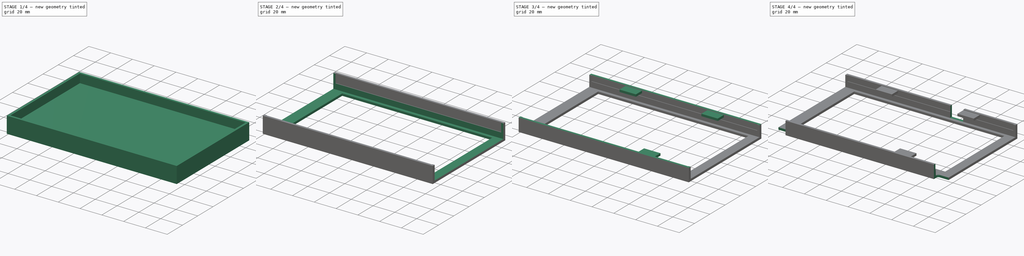
[diagram: build sequence overview — one tinted view per stage of 4, left to right]
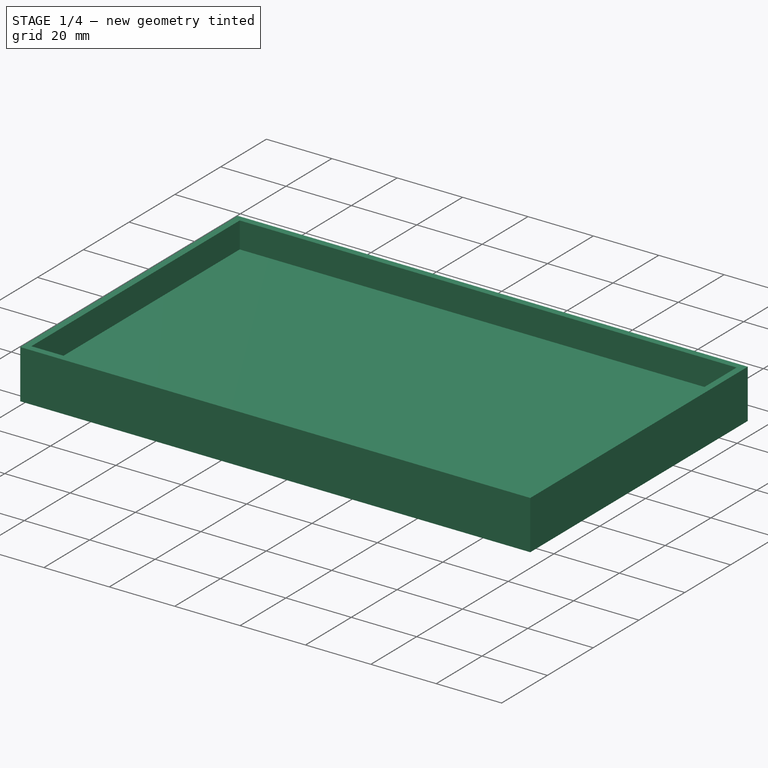
[diagram: stage 1 of 4 — iso view after this stage's code; geometry added in this stage tinted green]
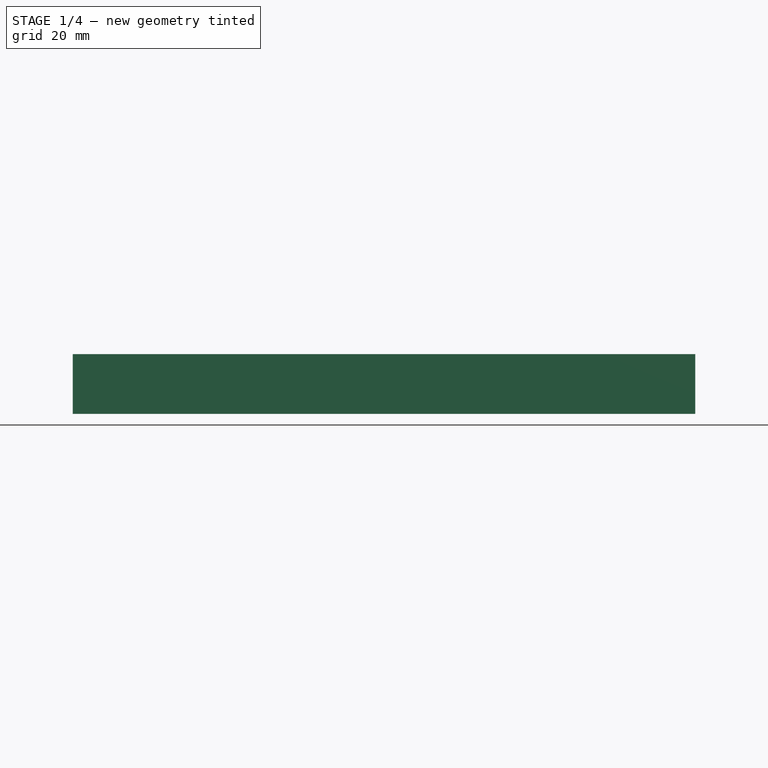
[diagram: stage 1 of 4 — front view after this stage's code; geometry added in this stage tinted green]
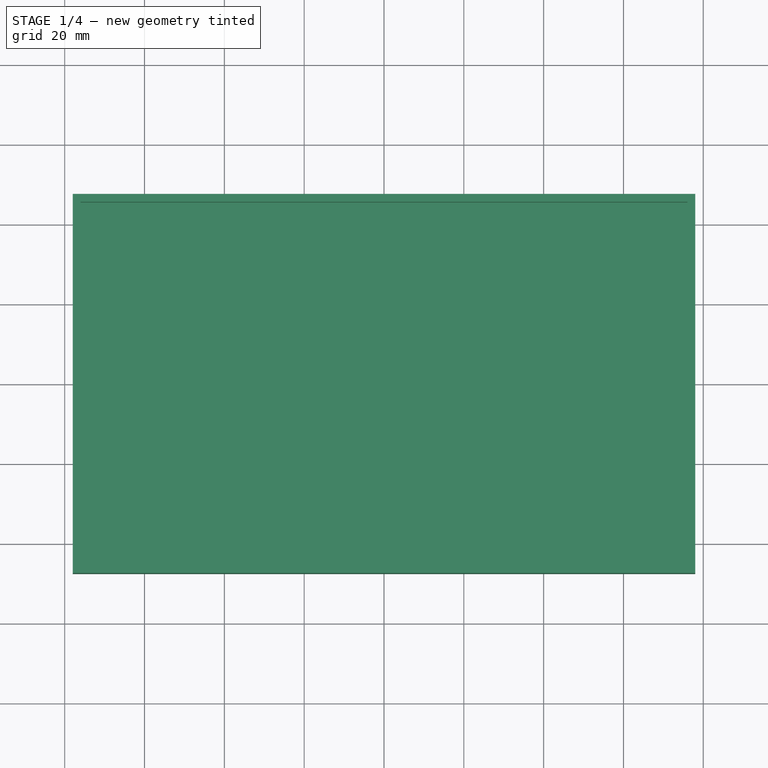
[diagram: stage 1 of 4 — top view after this stage's code; geometry added in this stage tinted green]
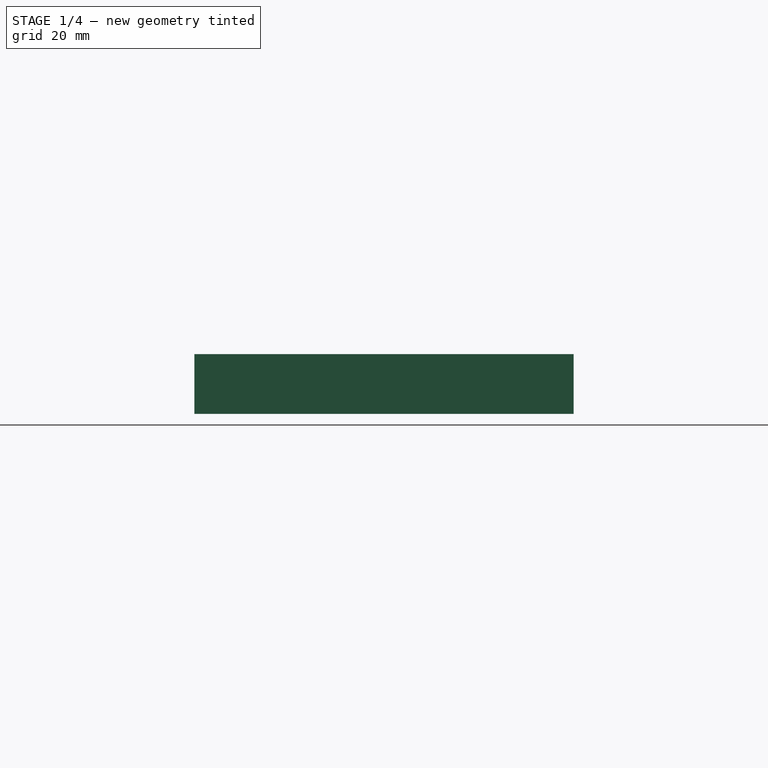
[diagram: stage 1 of 4 — right view after this stage's code; geometry added in this stage tinted green]
FCSTD DOCUMENT  (FreeCAD 0.21R33675 (Git))
Label: 8th Gen AIBT Front
License: All rights reserved
LicenseURL: https://en.wikipedia.org/wiki/All_rights_reserved
objects: Sketcher::SketchObject×9, PartDesign::Pocket×6, PartDesign::Pad×3, PartDesign::Body×1
note: 28 computed .brp shape members not serialized (recipe doc carries the construction recipe); baked Part::Feature solids carry a one-line shape summary decoded from their .brp

FEATURE [Sketcher::SketchObject] Sketch  label="Base Sketch"
  FullyConstrained = true
  MapMode = 5
  Support = -> [XY_Plane]
  sketch-geometry (4):
    g0: LineSegment StartX=-78 StartY=47.5 StartZ=0 EndX=78 EndY=47.5 EndZ=0
    g1: LineSegment StartX=78 StartY=47.5 StartZ=0 EndX=78 EndY=-47.5 EndZ=0
    g2: LineSegment StartX=78 StartY=-47.5 StartZ=0 EndX=-78 EndY=-47.5 EndZ=0
    g3: LineSegment StartX=-78 StartY=-47.5 StartZ=0 EndX=-78 EndY=47.5 EndZ=0
  constraints (10):
    c: Coincident(g0,g1)
    c: Coincident(g1,g2)
    c: Coincident(g2,g3)
    c: Coincident(g3,g0)
    c: Horizontal(g2)
    c: Vertical(g1)
    c: DistanceX(g0,g0) = 156
    c: DistanceY(g3,g3) = 95
    c: Symmetric(g0,g2,g-1)
    c: Symmetric(g0,g0,g-2)
FEATURE [PartDesign::Pad] Pad  label="Base"
  Direction = (0,0,1)
  Length = 15
  Length2 = 10
  Profile = -> Sketch
  ReferenceAxis = -> Sketch [N_Axis]
  Type = 0
FEATURE [Sketcher::SketchObject] Sketch001  label="Shell Sketch"
  ExternalGeometry = -> [Pad]
  FullyConstrained = true
  MapMode = 5
  Placement = pos=(0,0,15) rot=(0,0,1;0rad)
  Support = -> [Pad]
  sketch-geometry (6):
    g0: LineSegment StartX=-76 StartY=45.5 StartZ=0 EndX=76 EndY=45.5 EndZ=0
    g1: LineSegment StartX=76 StartY=45.5 StartZ=0 EndX=76 EndY=-45.5 EndZ=0
    g2: LineSegment StartX=76 StartY=-45.5 StartZ=0 EndX=-76 EndY=-45.5 EndZ=0
    g3: LineSegment StartX=-76 StartY=-45.5 StartZ=0 EndX=-76 EndY=45.5 EndZ=0
    g4: LineSegment StartX=-76 StartY=45.5 StartZ=0 EndX=-76 EndY=47.5 EndZ=0
    g5: LineSegment StartX=-76 StartY=45.5 StartZ=0 EndX=-78 EndY=45.5 EndZ=0
  constraints (16):
    c: Coincident(g0,g1)
    c: Coincident(g1,g2)
    c: Coincident(g2,g3)
    c: Coincident(g3,g0)
    c: Horizontal(g2)
    c: Vertical(g1)
    c: Symmetric(g0,g2,g-1)
    c: Symmetric(g0,g0,g-2)
    c: Coincident(g4,g0)
    c: PointOnObject(g4,g-4)
    c: Vertical(g4)
    c: Coincident(g5,g0)
    c: PointOnObject(g5,g-3)
    c: Horizontal(g5)
    c: Equal(g5,g4)
    c: DistanceX(g5,g5) = 2
FEATURE [PartDesign::Pocket] Pocket  label="Shell"
  BaseFeature = -> Pad
  Direction = (0,0,-1)
  Length = 8
  Length2 = 5
  Profile = -> Sketch001
  ReferenceAxis = -> Sketch001 [N_Axis]
  Type = 0
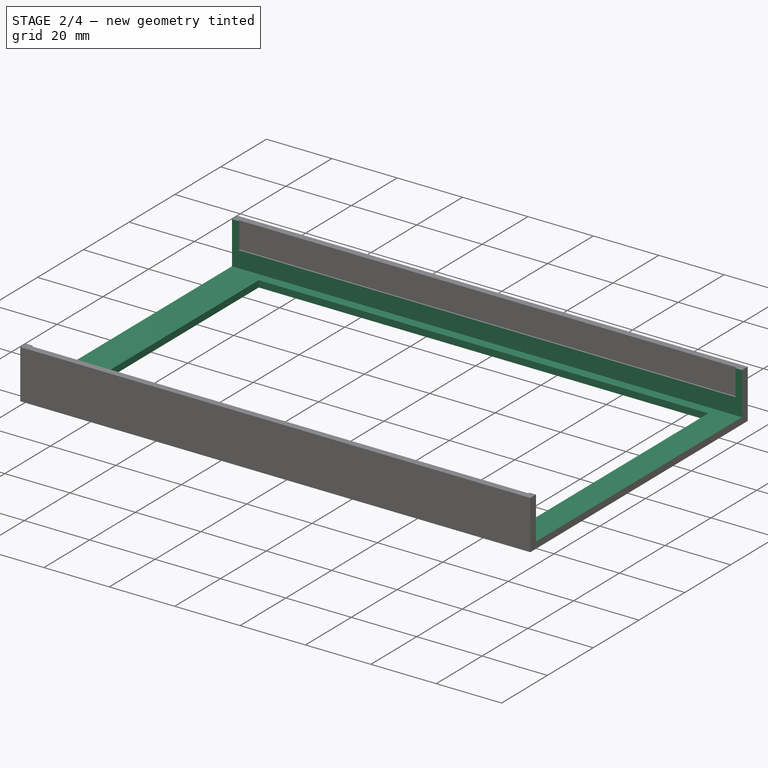
[diagram: stage 2 of 4 — iso view after this stage's code; geometry added in this stage tinted green]
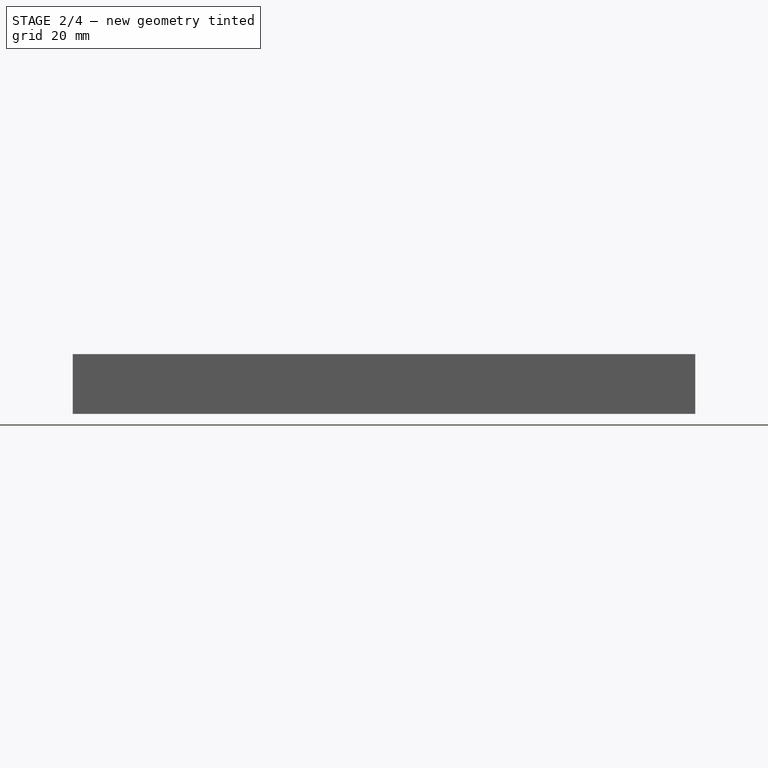
[diagram: stage 2 of 4 — front view after this stage's code; geometry added in this stage tinted green]
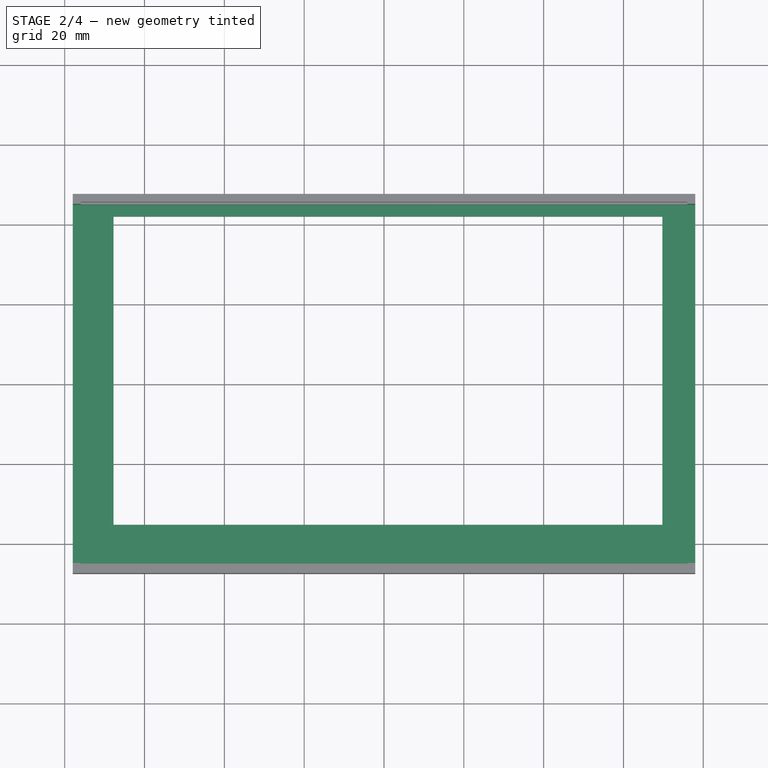
[diagram: stage 2 of 4 — top view after this stage's code; geometry added in this stage tinted green]
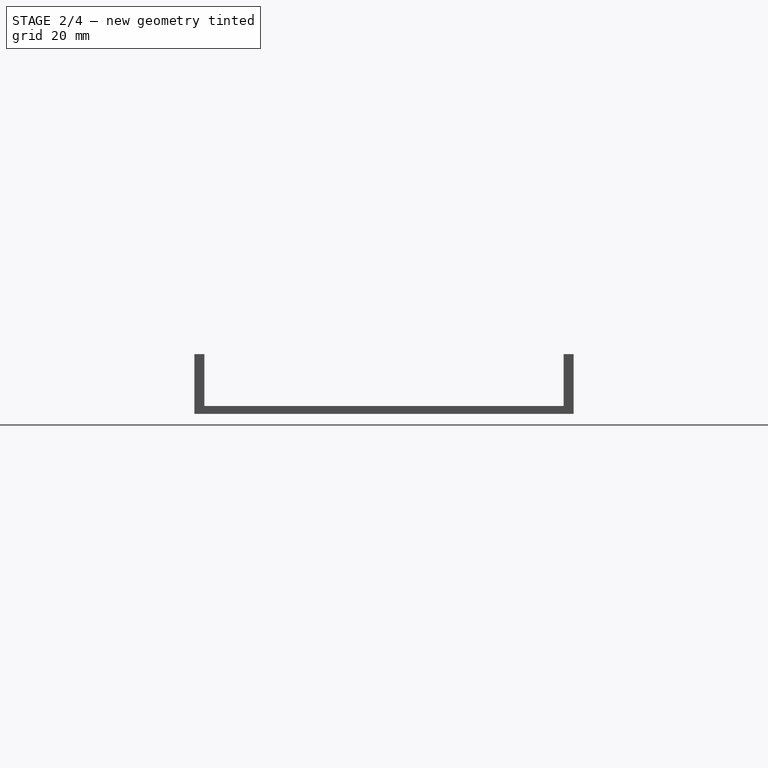
[diagram: stage 2 of 4 — right view after this stage's code; geometry added in this stage tinted green]
FEATURE [Sketcher::SketchObject] Sketch002  label="Screen Shell Sketch"
  ExternalGeometry = -> [Pocket]
  FullyConstrained = true
  MapMode = 5
  Placement = pos=(0,0,7) rot=(0,0,1;0rad)
  Support = -> [Pocket]
  sketch-geometry (4):
    g0: LineSegment StartX=-78 StartY=45 StartZ=0 EndX=78 EndY=45 EndZ=0
    g1: LineSegment StartX=78 StartY=45 StartZ=0 EndX=78 EndY=-45 EndZ=0
    g2: LineSegment StartX=78 StartY=-45 StartZ=0 EndX=-78 EndY=-45 EndZ=0
    g3: LineSegment StartX=-78 StartY=-45 StartZ=0 EndX=-78 EndY=45 EndZ=0
  constraints (10):
    c: Coincident(g0,g1)
    c: Coincident(g1,g2)
    c: Coincident(g2,g3)
    c: Coincident(g3,g0)
    c: Horizontal(g2)
    c: DistanceY(g3,g3) = 90
    c: Symmetric(g0,g1,g-1)
    c: PointOnObject(g0,g-3)
    c: PointOnObject(g0,g-4)
    c: Symmetric(g0,g2,g-1)
FEATURE [PartDesign::Pocket] Pocket001  label="Screen Shell"
  BaseFeature = -> Pocket
  Direction = (0,0,-1)
  Length = 5
  Length2 = 9
  Profile = -> Sketch002
  ReferenceAxis = -> Sketch002 [N_Axis]
  Type = 4
FEATURE [Sketcher::SketchObject] Sketch003  label="Screen Cut Sketch"
  ExternalGeometry = -> [Pocket001]
  FullyConstrained = true
  MapMode = 5
  Placement = pos=(0,0,2) rot=(0,0,1;0rad)
  Support = -> [Pocket001]
  sketch-geometry (6):
    g0: LineSegment StartX=-67.76 StartY=42.056 StartZ=0 EndX=69.76 EndY=42.056 EndZ=0
    g1: LineSegment StartX=69.76 StartY=42.056 StartZ=0 EndX=69.76 EndY=-35.176 EndZ=0
    g2: LineSegment StartX=69.76 StartY=-35.176 StartZ=0 EndX=-67.76 EndY=-35.176 EndZ=0
    g3: LineSegment StartX=-67.76 StartY=-35.176 StartZ=0 EndX=-67.76 EndY=42.056 EndZ=0
    g4: LineSegment StartX=-77.6 StartY=-45 StartZ=0 EndX=-77.6 EndY=45 EndZ=0
    g5: LineSegment StartX=77.6 StartY=45 StartZ=0 EndX=77.6 EndY=-45 EndZ=0
  constraints (19):
    c: Coincident(g0,g1)
    c: Coincident(g1,g2)
    c: Coincident(g2,g3)
    c: Coincident(g3,g0)
    c: Horizontal(g2)
    c: Vertical(g1)
    c: Vertical(g3)
    c: DistanceX(g0,g0) = 137.52
    c: DistanceY(g3,g3) = 77.232
    c: Horizontal(g0)
    c: DistanceY(g0,g-3) = 2.944
    c: PointOnObject(g4,g-4)
    c: PointOnObject(g4,g-3)
    c: Vertical(g4)
    c: PointOnObject(g5,g-4)
    c: Vertical(g5)
    c: DistanceX(g4,g5) = 155.2
    c: Symmetric(g5,g4,g-2)
    c: DistanceX(g0,g5) = 7.84
FEATURE [PartDesign::Pocket] Pocket002  label="Screen Cut"
  BaseFeature = -> Pocket001
  Direction = (0,0,-1)
  Length = 5
  Length2 = 5
  Profile = -> Sketch003
  ReferenceAxis = -> Sketch003 [N_Axis]
  Type = 0
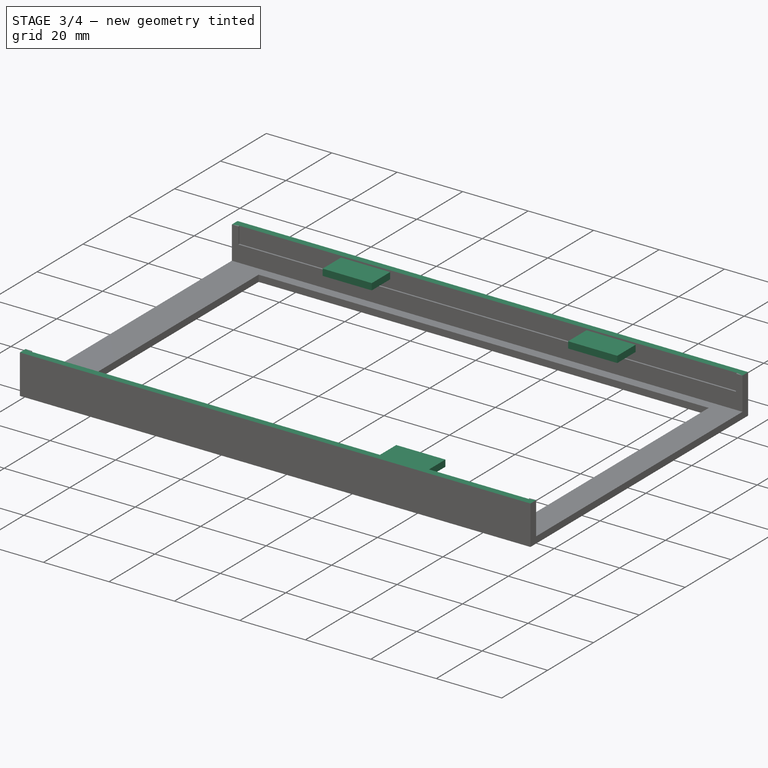
[diagram: stage 3 of 4 — iso view after this stage's code; geometry added in this stage tinted green]
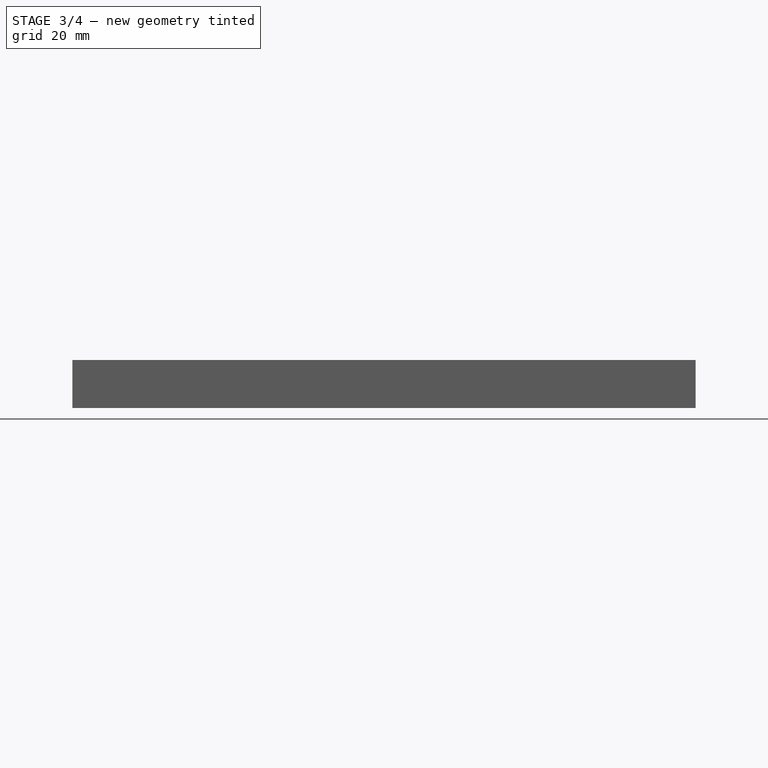
[diagram: stage 3 of 4 — front view after this stage's code; geometry added in this stage tinted green]
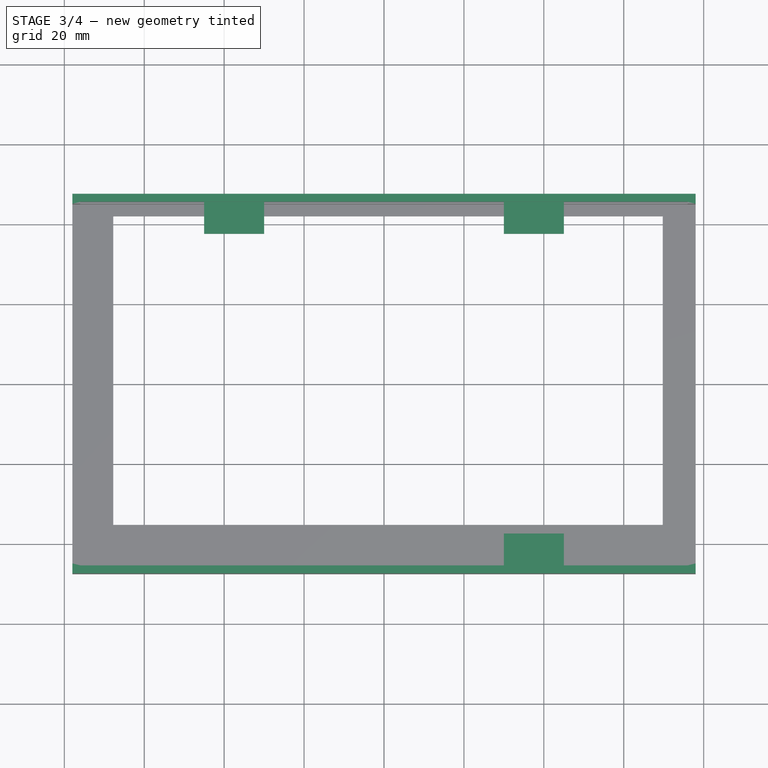
[diagram: stage 3 of 4 — top view after this stage's code; geometry added in this stage tinted green]
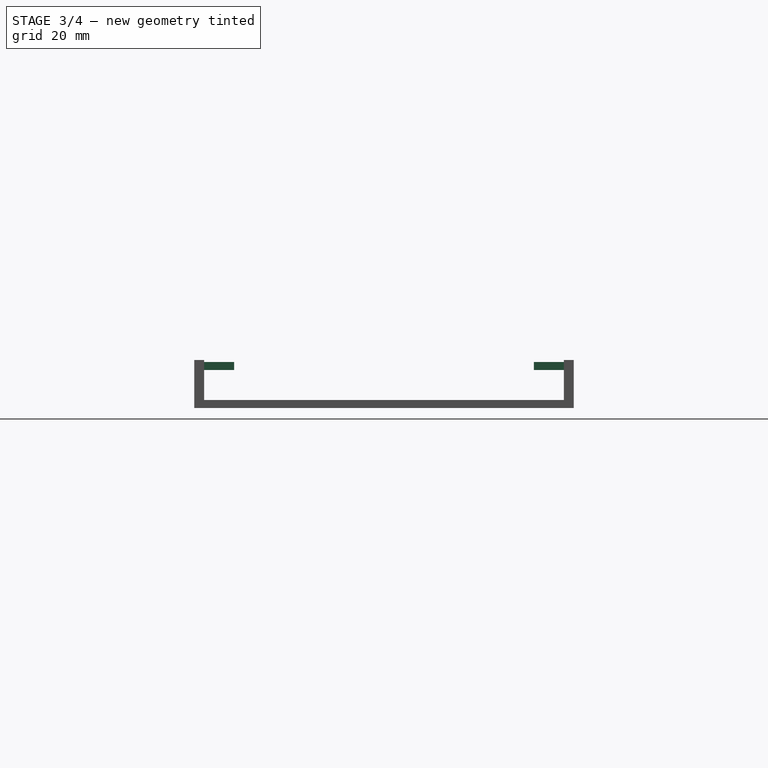
[diagram: stage 3 of 4 — right view after this stage's code; geometry added in this stage tinted green]
FEATURE [Sketcher::SketchObject] Sketch004  label="Upper Board Lock Sketch"
  ExternalGeometry = -> [Pocket002]
  FullyConstrained = true
  MapMode = 5
  Placement = pos=(0,45.5,0) rot=(1,0,0;1.5708rad)
  Support = -> [Pocket002]
  sketch-geometry (11):
    g0: LineSegment StartX=-45 StartY=11.5 StartZ=0 EndX=-30 EndY=11.5 EndZ=0
    g1: LineSegment StartX=-30 StartY=11.5 StartZ=0 EndX=-30 EndY=9.5 EndZ=0
    g2: LineSegment StartX=-30 StartY=9.5 StartZ=0 EndX=-45 EndY=9.5 EndZ=0
    g3: LineSegment StartX=-45 StartY=9.5 StartZ=0 EndX=-45 EndY=11.5 EndZ=0
    g4: LineSegment StartX=-45 StartY=9.5 StartZ=0 EndX=-45 EndY=7 EndZ=0
    g5: LineSegment StartX=30 StartY=11.5 StartZ=0 EndX=45 EndY=11.5 EndZ=0
    g6: LineSegment StartX=45 StartY=11.5 StartZ=0 EndX=45 EndY=9.5 EndZ=0
    g7: LineSegment StartX=45 StartY=9.5 StartZ=0 EndX=30 EndY=9.5 EndZ=0
    g8: LineSegment StartX=30 StartY=9.5 StartZ=0 EndX=30 EndY=11.5 EndZ=0
    g9: LineSegment StartX=30 StartY=9.5 StartZ=0 EndX=30 EndY=7 EndZ=0
    g10: LineSegment StartX=-30 StartY=9.5 StartZ=0 EndX=30 EndY=9.5 EndZ=0
  constraints (31):
    c: Coincident(g0,g1)
    c: Coincident(g1,g2)
    c: Coincident(g2,g3)
    c: Coincident(g3,g0)
    c: Horizontal(g0)
    c: Horizontal(g2)
    c: Vertical(g1)
    c: Vertical(g3)
    c: DistanceY(g3,g3) = 2
    c: DistanceX(g0,g0) = 15
    c: Coincident(g4,g2)
    c: PointOnObject(g4,g-3)
    c: Vertical(g4)
    c: DistanceY(g4,g4) = 2.5
    c: Coincident(g5,g6)
    c: Coincident(g6,g7)
    c: Coincident(g7,g8)
    c: Coincident(g8,g5)
    c: Horizontal(g5)
    c: Horizontal(g7)
    c: Vertical(g6)
    c: Vertical(g8)
    c: Equal(g5,g0)
    c: Equal(g8,g1)
    c: Coincident(g9,g7)
    c: PointOnObject(g9,g-3)
    c: Vertical(g9)
    c: Symmetric(g7,g1,g-2)
    c: Coincident(g10,g1)
    c: Coincident(g10,g7)
    c: DistanceX(g10,g10) = 60
FEATURE [PartDesign::Pad] Pad001  label="Upper Board Lock"
  BaseFeature = -> Pocket002
  Direction = (0,-1,2e-16)
  Length = 8
  Length2 = 10
  Profile = -> Sketch004
  ReferenceAxis = -> Sketch004 [N_Axis]
  Type = 0
FEATURE [Sketcher::SketchObject] Sketch005  label="Lower Board Lock Sketch"
  ExternalGeometry = -> [Pad001]
  FullyConstrained = true
  MapMode = 5
  Placement = pos=(0,-45.5,0) rot=(0,0.707107,0.707107;3.14159rad)
  Support = -> [Pad001]
  sketch-geometry (4):
    g0: LineSegment StartX=-45 StartY=11.5 StartZ=0 EndX=-30 EndY=11.5 EndZ=0
    g1: LineSegment StartX=-30 StartY=11.5 StartZ=0 EndX=-30 EndY=9.5 EndZ=0
    g2: LineSegment StartX=-30 StartY=9.5 StartZ=0 EndX=-45 EndY=9.5 EndZ=0
    g3: LineSegment StartX=-45 StartY=9.5 StartZ=0 EndX=-45 EndY=11.5 EndZ=0
  constraints (10):
    c: Coincident(g0,g1)
    c: Coincident(g1,g2)
    c: Coincident(g2,g3)
    c: Coincident(g3,g0)
    c: Horizontal(g0)
    c: Horizontal(g2)
    c: Vertical(g1)
    c: Vertical(g3)
    c: Coincident(g0,g-4)
    c: Coincident(g1,g-6)
FEATURE [PartDesign::Pad] Pad002  label="Lower Board Lock"
  BaseFeature = -> Pad001
  Direction = (0,1,-2e-16)
  Length = 8
  Length2 = 10
  Profile = -> Sketch005
  ReferenceAxis = -> Sketch005 [N_Axis]
  Type = 0
FEATURE [Sketcher::SketchObject] Sketch006  label="Upper Cut Sketch"
  ExternalGeometry = -> [Pad002]
  FullyConstrained = true
  MapMode = 5
  Placement = pos=(0,0,15) rot=(0,0,1;0rad)
  Support = -> [Pad002]
  sketch-geometry (16):
    g0: LineSegment StartX=-78 StartY=-45 StartZ=0 EndX=-78 EndY=-47.5 EndZ=0
    g1: LineSegment StartX=-78 StartY=-47.5 StartZ=0 EndX=78 EndY=-47.5 EndZ=0
    g2: LineSegment StartX=78 StartY=-47.5 StartZ=0 EndX=78 EndY=-45 EndZ=0
    g3: LineSegment StartX=78 StartY=-45 StartZ=0 EndX=76 EndY=-45 EndZ=0
    g4: LineSegment StartX=76 StartY=-45 StartZ=0 EndX=76 EndY=-45.5 EndZ=0
    g5: LineSegment StartX=76 StartY=-45.5 StartZ=0 EndX=-76 EndY=-45.5 EndZ=0
    g6: LineSegment StartX=-76 StartY=-45.5 StartZ=0 EndX=-76 EndY=-45 EndZ=0
    g7: LineSegment StartX=-78 StartY=-45 StartZ=0 EndX=-76 EndY=-45 EndZ=0
    g8: LineSegment StartX=-78 StartY=47.5 StartZ=0 EndX=-78 EndY=45 EndZ=0
    g9: LineSegment StartX=-78 StartY=45 StartZ=0 EndX=-76 EndY=45 EndZ=0
    g10: LineSegment StartX=-76 StartY=45 StartZ=0 EndX=-76 EndY=45.5 EndZ=0
    g11: LineSegment StartX=-76 StartY=45.5 StartZ=0 EndX=76 EndY=45.5 EndZ=0
    g12: LineSegment StartX=76 StartY=45.5 StartZ=0 EndX=76 EndY=45 EndZ=0
    g13: LineSegment StartX=76 StartY=45 StartZ=0 EndX=78 EndY=45 EndZ=0
    g14: LineSegment StartX=78 StartY=45 StartZ=0 EndX=78 EndY=47.5 EndZ=0
    g15: LineSegment StartX=78 StartY=47.5 StartZ=0 EndX=-78 EndY=47.5 EndZ=0
  constraints (32):
    c: Coincident(g0,g-13)
    c: Coincident(g0,g-16)
    c: Coincident(g1,g0)
    c: Coincident(g1,g-19)
    c: Coincident(g2,g1)
    c: Coincident(g2,g-19)
    c: Coincident(g3,g2)
    c: Coincident(g3,g-18)
    c: Coincident(g4,g3)
    c: Coincident(g4,g-17)
    c: Coincident(g5,g4)
    c: Coincident(g5,g-15)
    c: Coincident(g6,g5)
    c: Coincident(g6,g-14)
    c: Coincident(g7,g0)
    c: Coincident(g7,g6)
    c: Coincident(g8,g-4)
    c: Coincident(g8,g-7)
    c: Coincident(g9,g8)
    c: Coincident(g9,g-7)
    c: Coincident(g10,g9)
    c: Coincident(g10,g-8)
    c: Coincident(g11,g10)
    c: Coincident(g11,g-9)
    c: Coincident(g12,g11)
    c: Coincident(g12,g-10)
    c: Coincident(g13,g12)
    c: Coincident(g13,g-11)
    c: Coincident(g14,g13)
    c: Coincident(g14,g-11)
    c: Coincident(g15,g14)
    c: Coincident(g15,g8)
FEATURE [PartDesign::Pocket] Pocket003  label="Upper Cut"
  BaseFeature = -> Pad002
  Direction = (0,0,-1)
  Length = 3
  Length2 = 5
  Profile = -> Sketch006
  ReferenceAxis = -> Sketch006 [N_Axis]
  Type = 0
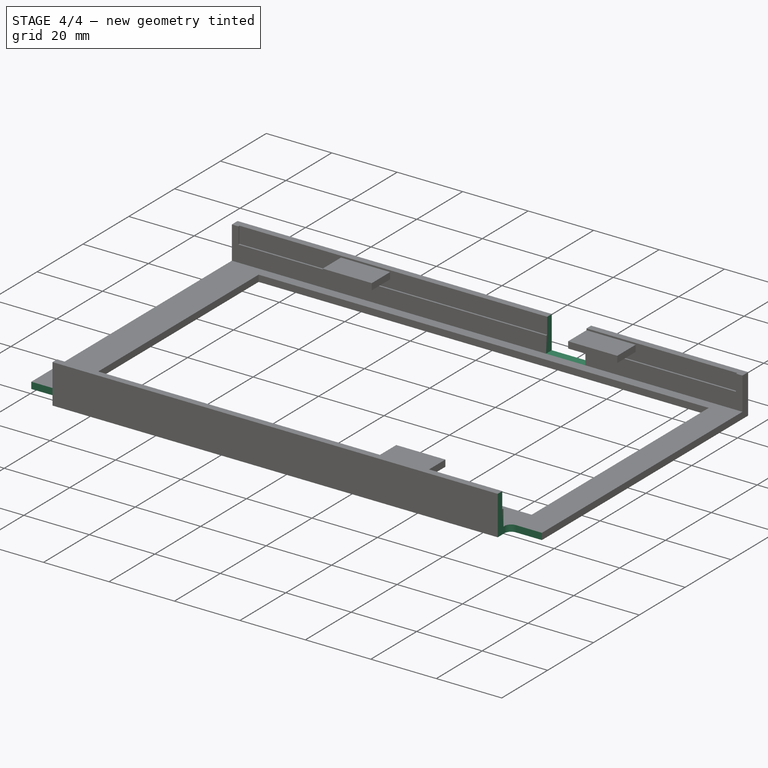
[diagram: stage 4 of 4 — iso view after this stage's code; geometry added in this stage tinted green]
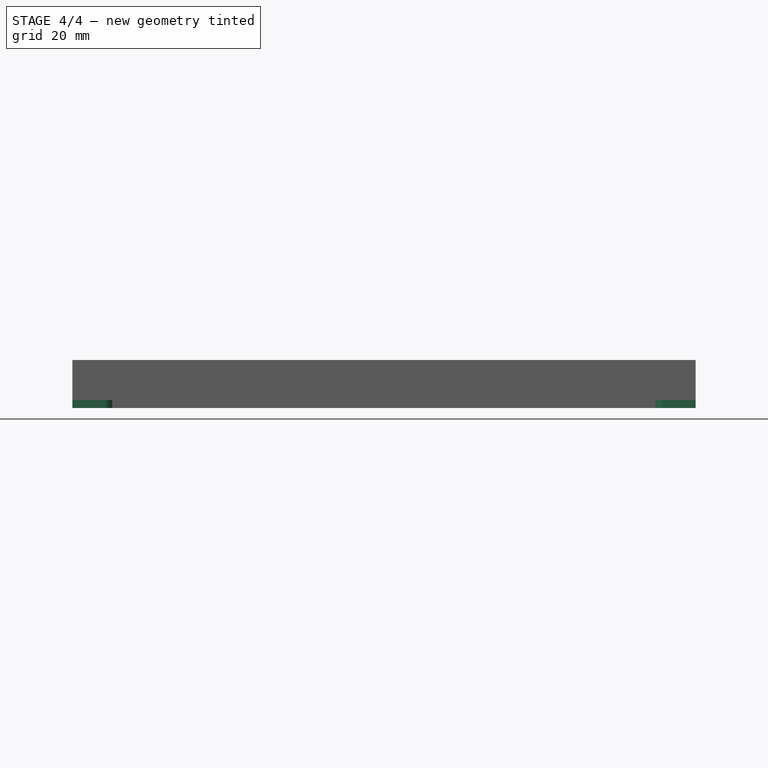
[diagram: stage 4 of 4 — front view after this stage's code; geometry added in this stage tinted green]
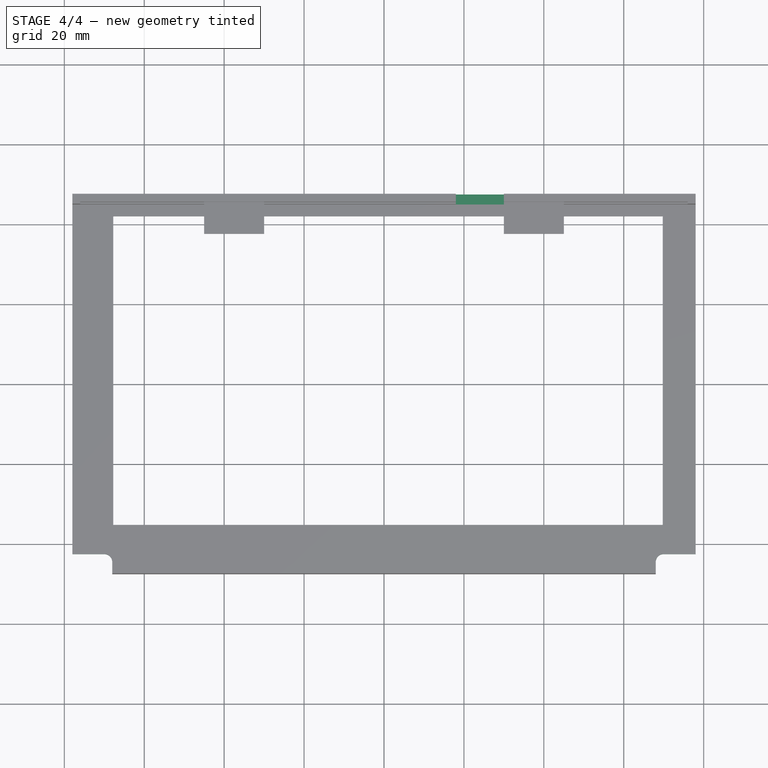
[diagram: stage 4 of 4 — top view after this stage's code; geometry added in this stage tinted green]
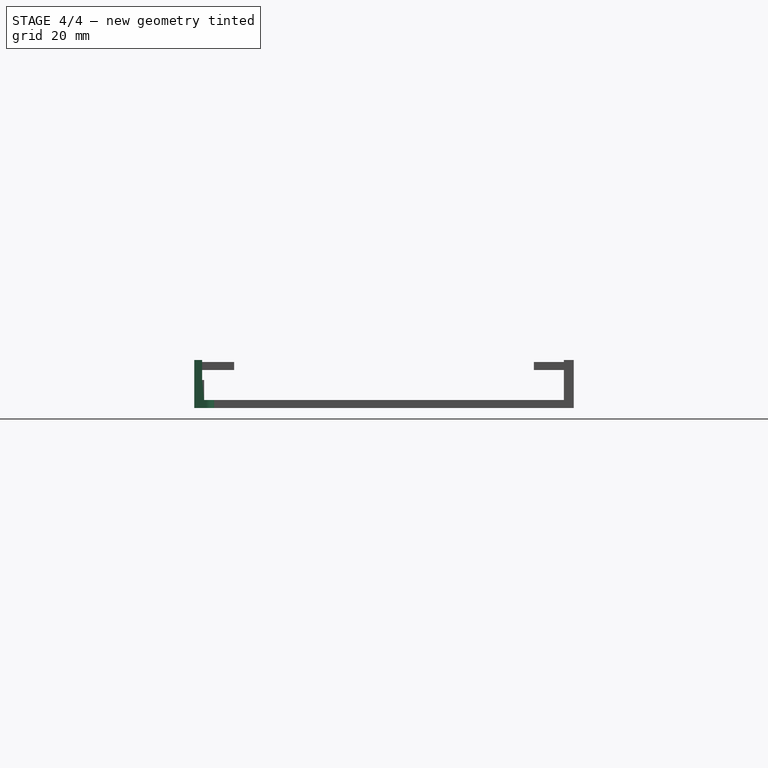
[diagram: stage 4 of 4 — right view after this stage's code; geometry added in this stage tinted green]
FEATURE [Sketcher::SketchObject] Sketch007  label="Fitment Shaving Sketch"
  ExternalGeometry = -> [Pocket003]
  FullyConstrained = true
  MapMode = 5
  Placement = pos=(0,0,12) rot=(0,0,1;0rad)
  Support = -> [Pocket003]
  sketch-geometry (19):
    g0: LineSegment StartX=-68 StartY=-47.5 StartZ=0 EndX=-78 EndY=-47.5 EndZ=0
    g1: LineSegment StartX=-78 StartY=-47.5 StartZ=0 EndX=-78 EndY=-42.5 EndZ=0
    g2: LineSegment StartX=-68 StartY=-42.5 StartZ=0 EndX=-68 EndY=-47.5 EndZ=0
    g3: LineSegment StartX=68 StartY=-47.5 StartZ=0 EndX=78 EndY=-47.5 EndZ=0
    g4: LineSegment StartX=78 StartY=-47.5 StartZ=0 EndX=78 EndY=-42.5 EndZ=0
    g5: LineSegment StartX=68 StartY=-42.5 StartZ=0 EndX=68 EndY=-47.5 EndZ=0
    g6: LineSegment StartX=-78 StartY=-42.5 StartZ=0 EndX=-68 EndY=-42.5 EndZ=0
    g7: LineSegment StartX=68 StartY=-42.5 StartZ=0 EndX=78 EndY=-42.5 EndZ=0
    g8: LineSegment StartX=-68 StartY=-42.5 StartZ=0 EndX=68 EndY=-42.5 EndZ=0
    g9: LineSegment StartX=-78 StartY=-42.5 StartZ=0 EndX=-70 EndY=-42.5 EndZ=0
    g10: LineSegment StartX=-68 StartY=-47.5 StartZ=0 EndX=-68 EndY=-44.5 EndZ=0
    g11: ArcOfCircle CenterX=-70 CenterY=-44.5 CenterZ=0 NormalX=0 NormalY=0 NormalZ=1 AngleXU=0 Radius=2 StartAngle=1.4e-15 EndAngle=1.5708
    g12: LineSegment StartX=-70 StartY=-42.5 StartZ=0 EndX=-70 EndY=-44.5 EndZ=0
    g13: LineSegment StartX=-70 StartY=-44.5 StartZ=0 EndX=-68 EndY=-44.5 EndZ=0
    g14: LineSegment StartX=78 StartY=-42.5 StartZ=0 EndX=70 EndY=-42.5 EndZ=0
    g15: LineSegment StartX=68 StartY=-47.5 StartZ=0 EndX=68 EndY=-44.5 EndZ=0
    g16: ArcOfCircle CenterX=70 CenterY=-44.5 CenterZ=0 NormalX=0 NormalY=0 NormalZ=1 AngleXU=0 Radius=2 StartAngle=1.5708 EndAngle=3.14159
    g17: LineSegment StartX=68 StartY=-44.5 StartZ=0 EndX=70 EndY=-44.5 EndZ=0
    g18: LineSegment StartX=70 StartY=-44.5 StartZ=0 EndX=70 EndY=-42.5 EndZ=0
  constraints (51):
    c: Coincident(g0,g1)
    c: Horizontal(g0)
    c: DistanceX(g1,g2) = 10
    c: Vertical(g2)
    c: Coincident(g3,g4)
    c: Horizontal(g3)
    c: Vertical(g5)
    c: Coincident(g0,g-6)
    c: Coincident(g3,g-9)
    c: Coincident(g2,g0)
    c: Coincident(g5,g3)
    c: Vertical(g1)
    c: Coincident(g6,g1)
    c: Coincident(g6,g2)
    c: Horizontal(g6)
    c: Vertical(g4)
    c: Coincident(g7,g5)
    c: Coincident(g7,g4)
    c: Horizontal(g7)
    c: Equal(g7,g6)
    c: Coincident(g8,g2)
    c: Coincident(g8,g5)
    c: Horizontal(g8)
    c: DistanceY(g2,g2) = 5
    c: Coincident(g9,g1)
    c: PointOnObject(g9,g6)
    c: Coincident(g10,g0)
    c: PointOnObject(g10,g2)
    c: Coincident(g11,g9)
    c: Coincident(g11,g10)
    c: Angle(g11) = 1.5708
    c: Coincident(g12,g9)
    c: Coincident(g12,g11)
    c: Vertical(g12)
    c: Coincident(g13,g11)
    c: Coincident(g13,g10)
    c: DistanceY(g12,g12) = 2
    c: Coincident(g14,g4)
    c: PointOnObject(g14,g7)
    c: Coincident(g15,g3)
    c: PointOnObject(g15,g5)
    c: Coincident(g16,g15)
    c: Coincident(g16,g14)
    c: Coincident(g17,g15)
    c: Horizontal(g17)
    c: Coincident(g18,g17)
    c: Coincident(g18,g14)
    c: Vertical(g18)
    c: Equal(g17,g18)
    c: Equal(g18,g12)
    c: Angle(g16) = 1.5708
FEATURE [PartDesign::Pocket] Pocket004  label="Fitment Shaving"
  BaseFeature = -> Pocket003
  Direction = (0,0,-1)
  Length = 13
  Length2 = 5
  Profile = -> Sketch007
  ReferenceAxis = -> Sketch007 [N_Axis]
  Type = 0
FEATURE [Sketcher::SketchObject] Sketch008  label="Screwhole Notch Sketch"
  ExternalGeometry = -> [Pocket004]
  FullyConstrained = true
  MapMode = 5
  Placement = pos=(0,47.5,0) rot=(0,0.707107,0.707107;3.14159rad)
  Support = -> [Pocket004]
  sketch-geometry (4):
    g0: LineSegment StartX=-30 StartY=12 StartZ=0 EndX=-18 EndY=12 EndZ=0
    g1: LineSegment StartX=-18 StartY=12 StartZ=0 EndX=-18 EndY=2 EndZ=0
    g2: LineSegment StartX=-18 StartY=2 StartZ=0 EndX=-30 EndY=2 EndZ=0
    g3: LineSegment StartX=-30 StartY=2 StartZ=0 EndX=-30 EndY=12 EndZ=0
  constraints (12):
    c: Coincident(g0,g1)
    c: Coincident(g1,g2)
    c: Coincident(g2,g3)
    c: Coincident(g3,g0)
    c: Horizontal(g0)
    c: Horizontal(g2)
    c: Vertical(g1)
    c: Vertical(g3)
    c: PointOnObject(g0,g-3)
    c: PointOnObject(g2,g-6)
    c: PointOnObject(g-5,g3)
    c: DistanceX(g0,g0) = 12
FEATURE [PartDesign::Pocket] Pocket005  label="Screwhole Notch"
  BaseFeature = -> Pocket004
  Direction = (0,-1,2e-16)
  Length = 5
  Length2 = 5
  Profile = -> Sketch008
  ReferenceAxis = -> Sketch008 [N_Axis]
  Type = 0
FEATURE [PartDesign::Body] Body
  Group = -> [Sketch,Pad,Sketch001,Pocket,Sketch002,Pocket001,Sketch003,Pocket002,Sketch004,Pad001,Sketch005,Pad002,Sketch006,Pocket003,Sketch007,Pocket004,Sketch008,Pocket005]
  Origin = -> Origin
  Tip = -> Pocket005
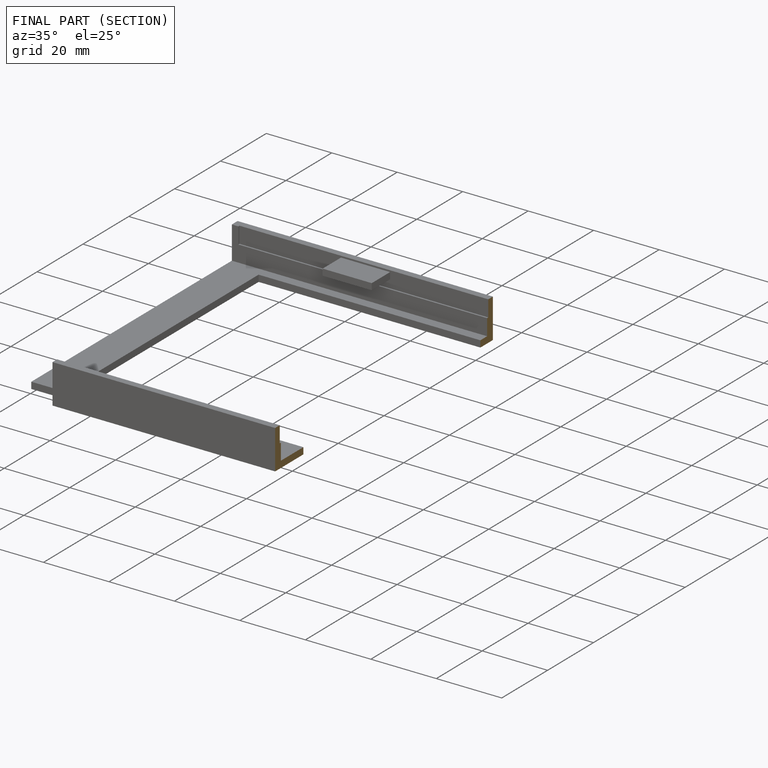
[diagram: finished part — half-section view (interior)]
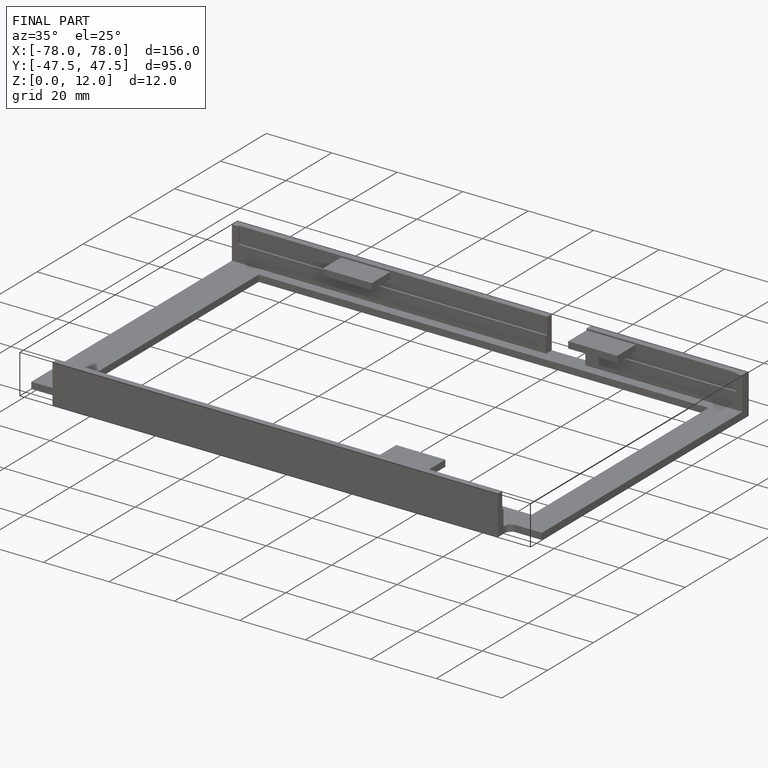
[diagram: finished part — iso view with bounding-box wireframe]
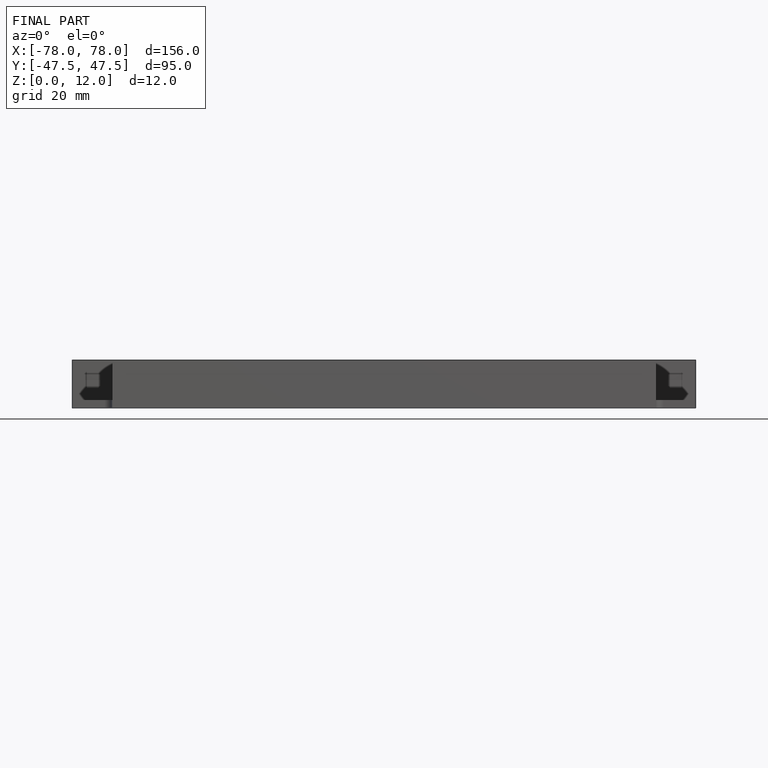
[diagram: finished part — front view with bounding-box wireframe]
